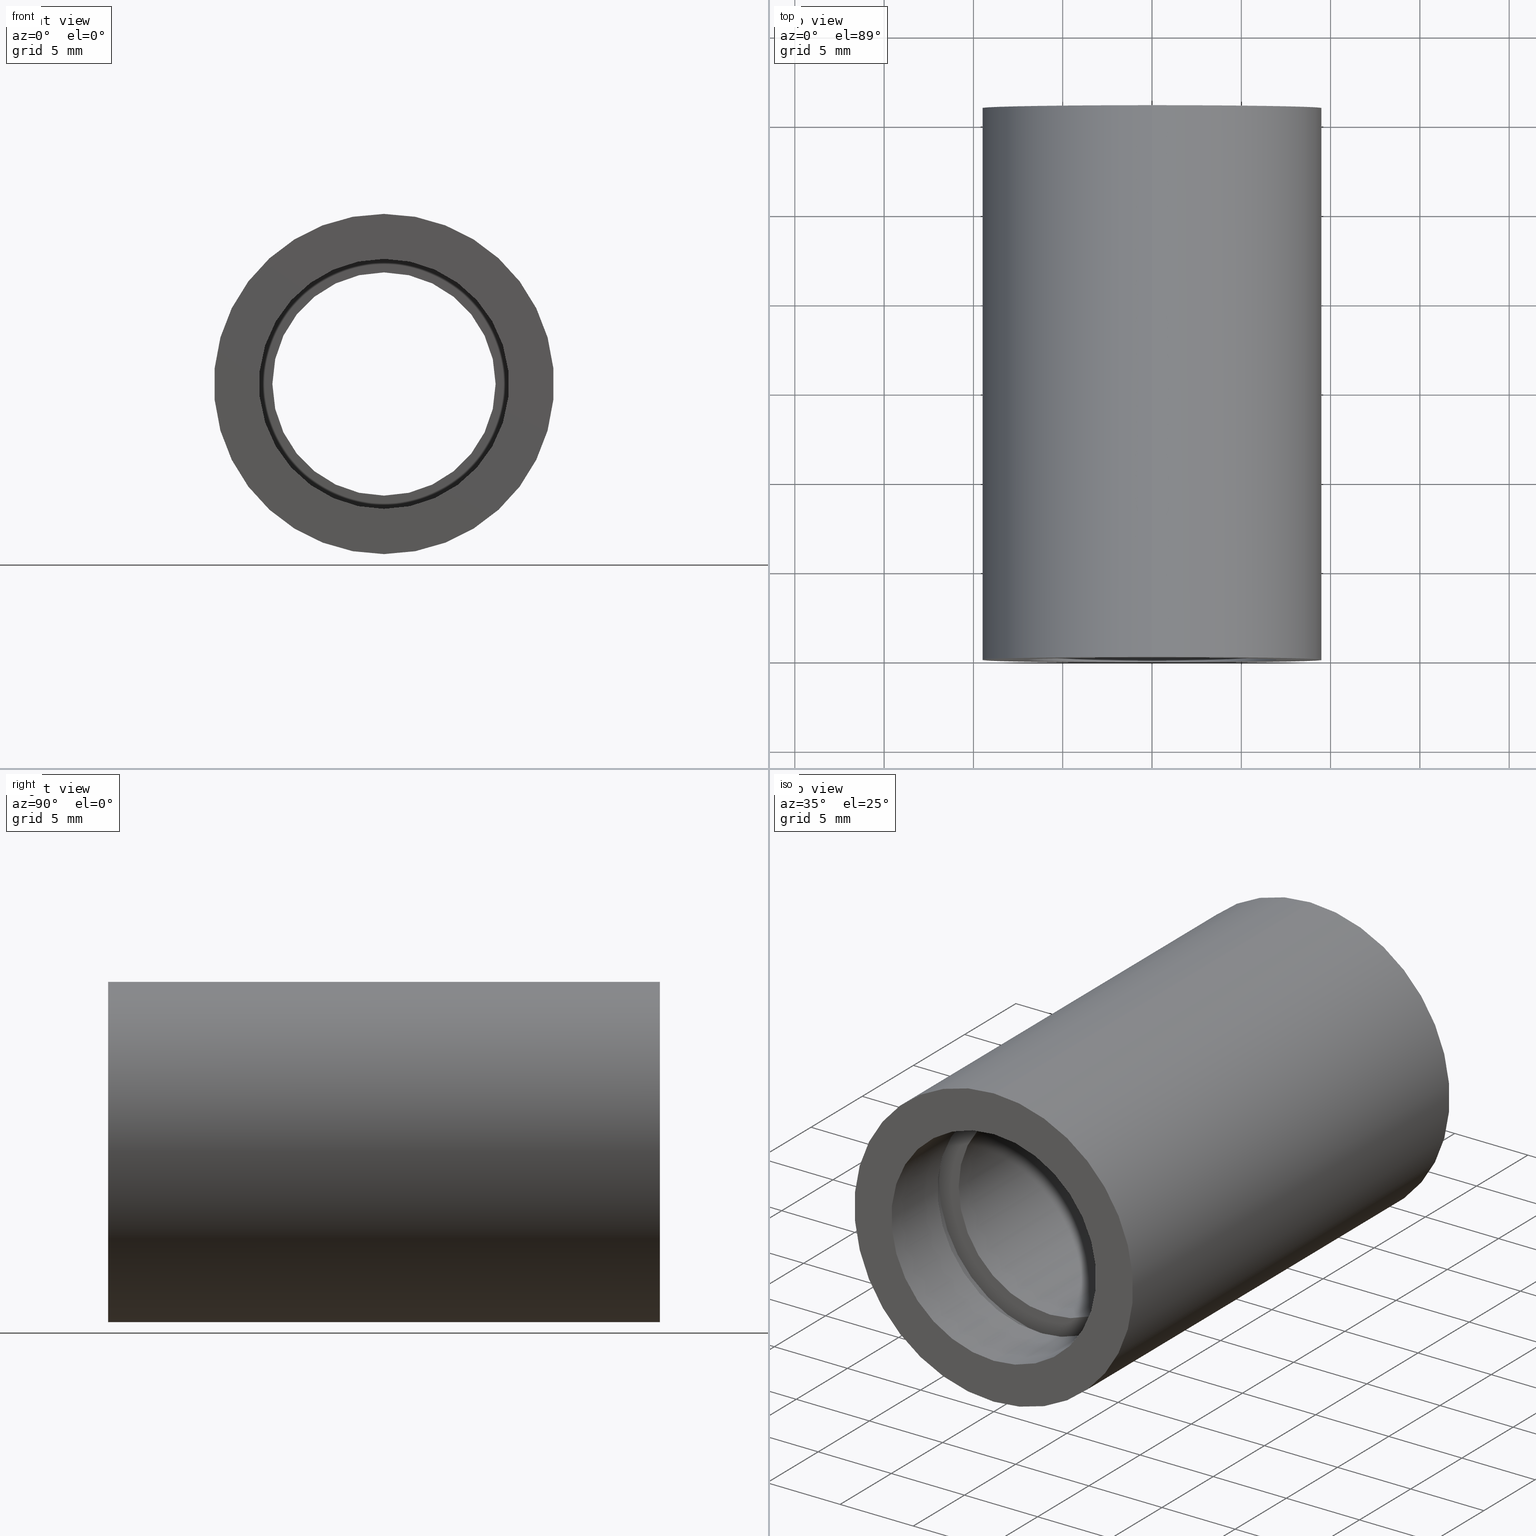
[diagram: canonical four-view strip — front | top / right | iso, engineering-drawing reading convention]
A machine part, canonical four-view strip (front | top / right | iso — engineering-drawing reading convention). The complete STEP part file that produces these views, byte-faithful:
ISO-10303-21;
HEADER;
FILE_DESCRIPTION (( 'STEP AP214' ),
    '1' );
FILE_NAME ('503086.STEP',
    '2019-09-11T02:37:51',
    ( '' ),
    ( '' ),
    'SwSTEP 2.0',
    'SolidWorks 2016',
    '' );
FILE_SCHEMA (( 'AUTOMOTIVE_DESIGN' ));
ENDSEC;

DATA;
#1 = FACE_BOUND ( 'NONE', #214, .T. ) ;
#2 = EDGE_CURVE ( 'NONE', #108, #208, #423, .T. ) ;
#3 = ADVANCED_FACE ( 'NONE', ( #461, #333 ), #84, .F. ) ;
#4 = CARTESIAN_POINT ( 'NONE',  ( 0.0000000000000000000, 161.3761669434274500, 7.600000000000019200 ) ) ;
#5 =( NAMED_UNIT ( * ) SI_UNIT ( $, .STERADIAN. ) SOLID_ANGLE_UNIT ( ) );
#6 = ADVANCED_FACE ( 'NONE', ( #209 ), #314, .T. ) ;
#7 = ORIENTED_EDGE ( 'NONE', *, *, #376, .T. ) ;
#8 = EDGE_LOOP ( 'NONE', ( #41, #549, #243, #56 ) ) ;
#9 = APPLICATION_PROTOCOL_DEFINITION ( 'draft international standard', 'automotive_design', 1998, #242 ) ;
#10 = AXIS2_PLACEMENT_3D ( 'NONE', #12, #530, #492 ) ;
#11 = ORIENTED_EDGE ( 'NONE', *, *, #350, .T. ) ;
#12 = CARTESIAN_POINT ( 'NONE',  ( 0.0000000000000000000, 161.3761669434274500, 0.0000000000000000000 ) ) ;
#13 = LINE ( 'NONE', #497, #489 ) ;
#14 = CARTESIAN_POINT ( 'NONE',  ( 0.0000000000000000000, -2.775557561562891400E-014, 9.525000000000019900 ) ) ;
#15 =( NAMED_UNIT ( * ) SI_UNIT ( $, .STERADIAN. ) SOLID_ANGLE_UNIT ( ) );
#16 = DIRECTION ( 'NONE',  ( 0.0000000000000000000, 0.0000000000000000000, 1.000000000000000000 ) ) ;
#17 = ORIENTED_EDGE ( 'NONE', *, *, #181, .F. ) ;
#18 = AXIS2_PLACEMENT_3D ( 'NONE', #537, #119, #340 ) ;
#19 = CARTESIAN_POINT ( 'NONE',  ( 6.250000000000019500, 5.499999999999983100, 0.0000000000000000000 ) ) ;
#20 = VECTOR ( 'NONE', #146, 1000.000000000000000 ) ;
#21 = DIRECTION ( 'NONE',  ( -0.0000000000000000000, 1.000000000000000000, -0.0000000000000000000 ) ) ;
#22 = STYLED_ITEM ( 'NONE', ( #330 ), #153 ) ;
#23 = CARTESIAN_POINT ( 'NONE',  ( 0.0000000000000000000, 161.3761669434274500, 0.0000000000000000000 ) ) ;
#24 = UNCERTAINTY_MEASURE_WITH_UNIT (LENGTH_MEASURE( 1.000000000000000100E-005 ), #103, 'distance_accuracy_value', 'NONE');
#25 = VERTEX_POINT ( 'NONE', #85 ) ;
#26 =( NAMED_UNIT ( * ) PLANE_ANGLE_UNIT ( ) SI_UNIT ( $, .RADIAN. ) );
#27 = FACE_BOUND ( 'NONE', #353, .T. ) ;
#28 = DIRECTION ( 'NONE',  ( -0.0000000000000000000, 1.000000000000000000, -0.0000000000000000000 ) ) ;
#29 = AXIS2_PLACEMENT_3D ( 'NONE', #582, #344, #244 ) ;
#30 = ORIENTED_EDGE ( 'NONE', *, *, #457, .T. ) ;
#31 = AXIS2_PLACEMENT_3D ( 'NONE', #563, #322, #565 ) ;
#32 = VERTEX_POINT ( 'NONE', #171 ) ;
#33 = FACE_BOUND ( 'NONE', #342, .T. ) ;
#34 = AXIS2_PLACEMENT_3D ( 'NONE', #265, #544, #174 ) ;
#35 = CARTESIAN_POINT ( 'NONE',  ( 0.0000000000000000000, 161.3761669434274500, 0.0000000000000000000 ) ) ;
#36 = DIRECTION ( 'NONE',  ( -0.0000000000000000000, 1.000000000000000000, -0.0000000000000000000 ) ) ;
#37 = SURFACE_STYLE_FILL_AREA ( #569 ) ;
#38 = DIRECTION ( 'NONE',  ( 0.0000000000000000000, 0.0000000000000000000, 1.000000000000000000 ) ) ;
#39 = CARTESIAN_POINT ( 'NONE',  ( 8.817456953860961000E-016, 161.3761669434274500, -7.200000000000015300 ) ) ;
#40 = CARTESIAN_POINT ( 'NONE',  ( 9.307315673519907200E-016, 161.3761669434274500, -7.600000000000019200 ) ) ;
#41 = ORIENTED_EDGE ( 'NONE', *, *, #494, .F. ) ;
#42 = DIRECTION ( 'NONE',  ( 0.0000000000000000000, 0.0000000000000000000, 1.000000000000000000 ) ) ;
#43 = VECTOR ( 'NONE', #470, 1000.000000000000000 ) ;
#44 =( GEOMETRIC_REPRESENTATION_CONTEXT ( 3 ) GLOBAL_UNCERTAINTY_ASSIGNED_CONTEXT ( ( #24 ) ) GLOBAL_UNIT_ASSIGNED_CONTEXT ( ( #103, #237, #572 ) ) REPRESENTATION_CONTEXT ( 'NONE', 'WORKASPACE' ) );
#45 = APPLICATION_CONTEXT ( 'automotive_design' ) ;
#46 =( NAMED_UNIT ( * ) SI_UNIT ( $, .STERADIAN. ) SOLID_ANGLE_UNIT ( ) );
#47 = UNCERTAINTY_MEASURE_WITH_UNIT (LENGTH_MEASURE( 1.000000000000000100E-005 ), #303, 'distance_accuracy_value', 'NONE');
#48 = ORIENTED_EDGE ( 'NONE', *, *, #309, .T. ) ;
#49 = ADVANCED_FACE ( 'NONE', ( #578 ), #194, .F. ) ;
#50 = VERTEX_POINT ( 'NONE', #222 ) ;
#51 = FILL_AREA_STYLE ('',( #622 ) ) ;
#52 = CIRCLE ( 'NONE', #292, 7.000000000000020400 ) ;
#53 = DIRECTION ( 'NONE',  ( 0.0000000000000000000, 0.0000000000000000000, 1.000000000000000000 ) ) ;
#54 = AXIS2_PLACEMENT_3D ( 'NONE', #590, #111, #427 ) ;
#55 = CARTESIAN_POINT ( 'NONE',  ( 0.0000000000000000000, 5.499999999999976900, 6.250000000000019500 ) ) ;
#56 = ORIENTED_EDGE ( 'NONE', *, *, #473, .F. ) ;
#57 = PLANE ( 'NONE',  #487 ) ;
#58 = CARTESIAN_POINT ( 'NONE',  ( 0.0000000000000000000, 161.3761669434274500, 0.0000000000000000000 ) ) ;
#59 = EDGE_LOOP ( 'NONE', ( #459, #496, #623, #368 ) ) ;
#60 = LINE ( 'NONE', #446, #317 ) ;
#61 = CARTESIAN_POINT ( 'NONE',  ( 0.0000000000000000000, 25.39999999999997700, 6.250000000000019500 ) ) ;
#62 = VERTEX_POINT ( 'NONE', #267 ) ;
#63 = EDGE_CURVE ( 'NONE', #293, #122, #88, .T. ) ;
#64 = ORIENTED_EDGE ( 'NONE', *, *, #473, .T. ) ;
#65 = DIRECTION ( 'NONE',  ( -0.0000000000000000000, 1.000000000000000000, -0.0000000000000000000 ) ) ;
#66 = PRESENTATION_LAYER_ASSIGNMENT (  '', '', ( #452 ) ) ;
#67 = CARTESIAN_POINT ( 'NONE',  ( 0.0000000000000000000, 4.499999999999976000, 0.0000000000000000000 ) ) ;
#68 = PRESENTATION_LAYER_ASSIGNMENT (  '', '', ( #498 ) ) ;
#69 = AXIS2_PLACEMENT_3D ( 'NONE', #616, #36, #42 ) ;
#70 = CIRCLE ( 'NONE', #595, 7.000000000000020400 ) ;
#71 = CARTESIAN_POINT ( 'NONE',  ( 0.0000000000000000000, -2.775557561562891400E-014, 0.0000000000000000000 ) ) ;
#72 = ORIENTED_EDGE ( 'NONE', *, *, #289, .F. ) ;
#73 = DIRECTION ( 'NONE',  ( 0.0000000000000000000, -1.000000000000000000, 0.0000000000000000000 ) ) ;
#74 = CIRCLE ( 'NONE', #394, 7.200000000000014400 ) ;
#75 = VERTEX_POINT ( 'NONE', #614 ) ;
#76 = FACE_OUTER_BOUND ( 'NONE', #229, .T. ) ;
#77 = DIRECTION ( 'NONE',  ( 0.0000000000000000000, -0.0000000000000000000, -1.000000000000000000 ) ) ;
#78 = SURFACE_STYLE_FILL_AREA ( #351 ) ;
#79 = DIRECTION ( 'NONE',  ( 0.0000000000000000000, 0.0000000000000000000, 1.000000000000000000 ) ) ;
#80 = AXIS2_PLACEMENT_3D ( 'NONE', #291, #439, #285 ) ;
#81 = ORIENTED_EDGE ( 'NONE', *, *, #223, .T. ) ;
#82 = COLOUR_RGB ( '',1.000000000000000000, 1.000000000000000000, 1.000000000000000000 ) ;
#83 = ORIENTED_EDGE ( 'NONE', *, *, #371, .T. ) ;
#84 = PLANE ( 'NONE',  #479 ) ;
#85 = CARTESIAN_POINT ( 'NONE',  ( 0.0000000000000000000, 4.499999999999976000, 7.000000000000020400 ) ) ;
#86 = CARTESIAN_POINT ( 'NONE',  ( 7.000000000000020400, -1.634585625335647100E-014, 0.0000000000000000000 ) ) ;
#87 =( LENGTH_UNIT ( ) NAMED_UNIT ( * ) SI_UNIT ( .MILLI., .METRE. ) );
#88 = CIRCLE ( 'NONE', #253, 6.250000000000019500 ) ;
#89 = SURFACE_SIDE_STYLE ('',( #37 ) ) ;
#90 = VERTEX_POINT ( 'NONE', #606 ) ;
#91 = CARTESIAN_POINT ( 'NONE',  ( 7.654042494670981300E-016, 5.499999999999976900, -6.250000000000019500 ) ) ;
#92 = FACE_OUTER_BOUND ( 'NONE', #395, .T. ) ;
#93 = EDGE_CURVE ( 'NONE', #108, #166, #557, .T. ) ;
#94 = FILL_AREA_STYLE_COLOUR ( '', #528 ) ;
#95 = DIRECTION ( 'NONE',  ( -0.0000000000000000000, 1.000000000000000000, 0.0000000000000000000 ) ) ;
#96 = ADVANCED_FACE ( 'NONE', ( #349 ), #191, .T. ) ;
#97 = ORIENTED_EDGE ( 'NONE', *, *, #534, .T. ) ;
#98 = EDGE_CURVE ( 'NONE', #275, #172, #70, .T. ) ;
#99 = DIRECTION ( 'NONE',  ( -0.0000000000000000000, 1.000000000000000000, -0.0000000000000000000 ) ) ;
#100 = AXIS2_PLACEMENT_3D ( 'NONE', #71, #21, #300 ) ;
#101 = CIRCLE ( 'NONE', #279, 9.525000000000019900 ) ;
#102 = DIRECTION ( 'NONE',  ( 1.000000000000000000, 0.0000000000000000000, 0.0000000000000000000 ) ) ;
#103 =( LENGTH_UNIT ( ) NAMED_UNIT ( * ) SI_UNIT ( .MILLI., .METRE. ) );
#104 = ORIENTED_EDGE ( 'NONE', *, *, #520, .F. ) ;
#105 = AXIS2_PLACEMENT_3D ( 'NONE', #454, #360, #551 ) ;
#106 = LINE ( 'NONE', #411, #522 ) ;
#107 = COLOUR_RGB ( '',1.000000000000000000, 1.000000000000000000, 1.000000000000000000 ) ;
#108 = VERTEX_POINT ( 'NONE', #318 ) ;
#109 = CARTESIAN_POINT ( 'NONE',  ( 0.0000000000000000000, 30.89999999999998400, 7.200000000000014400 ) ) ;
#110 = FACE_OUTER_BOUND ( 'NONE', #176, .T. ) ;
#111 = DIRECTION ( 'NONE',  ( -0.0000000000000000000, 1.000000000000000000, -0.0000000000000000000 ) ) ;
#112 = DIRECTION ( 'NONE',  ( -0.0000000000000000000, 1.000000000000000000, -0.0000000000000000000 ) ) ;
#113 = SURFACE_SIDE_STYLE ('',( #135 ) ) ;
#114 = CARTESIAN_POINT ( 'NONE',  ( 0.0000000000000000000, 25.39999999999997700, 0.0000000000000000000 ) ) ;
#115 = EDGE_LOOP ( 'NONE', ( #263, #295, #196, #463 ) ) ;
#116 = AXIS2_PLACEMENT_3D ( 'NONE', #114, #430, #120 ) ;
#117 = CARTESIAN_POINT ( 'NONE',  ( 0.0000000000000000000, 30.89999999999998400, 0.0000000000000000000 ) ) ;
#118 = FACE_BOUND ( 'NONE', #336, .T. ) ;
#119 = DIRECTION ( 'NONE',  ( 0.0000000000000000000, -1.000000000000000000, 0.0000000000000000000 ) ) ;
#120 = DIRECTION ( 'NONE',  ( 0.0000000000000000000, 0.0000000000000000000, 1.000000000000000000 ) ) ;
#121 = DIRECTION ( 'NONE',  ( -0.0000000000000000000, 1.000000000000000000, -0.0000000000000000000 ) ) ;
#122 = VERTEX_POINT ( 'NONE', #91 ) ;
#123 = PLANE ( 'NONE',  #18 ) ;
#124 = DIRECTION ( 'NONE',  ( -0.0000000000000000000, 1.000000000000000000, -0.0000000000000000000 ) ) ;
#125 = EDGE_CURVE ( 'NONE', #259, #469, #298, .T. ) ;
#126 = ORIENTED_EDGE ( 'NONE', *, *, #382, .F. ) ;
#127 = CARTESIAN_POINT ( 'NONE',  ( 0.0000000000000000000, 30.89999999999998400, 0.0000000000000000000 ) ) ;
#128 = PRESENTATION_STYLE_ASSIGNMENT (( #337 ) ) ;
#129 = ORIENTED_EDGE ( 'NONE', *, *, #125, .T. ) ;
#130 = DIRECTION ( 'NONE',  ( -0.0000000000000000000, 1.000000000000000000, -0.0000000000000000000 ) ) ;
#131 = DIRECTION ( 'NONE',  ( 0.0000000000000000000, 0.0000000000000000000, 1.000000000000000000 ) ) ;
#132 = SURFACE_STYLE_FILL_AREA ( #155 ) ;
#133 = AXIS2_PLACEMENT_3D ( 'NONE', #433, #202, #16 ) ;
#134 = ORIENTED_EDGE ( 'NONE', *, *, #346, .F. ) ;
#135 = SURFACE_STYLE_FILL_AREA ( #195 ) ;
#136 = VECTOR ( 'NONE', #140, 1000.000000000000000 ) ;
#137 = PRESENTATION_LAYER_ASSIGNMENT (  '', '', ( #22 ) ) ;
#138 =( NAMED_UNIT ( * ) PLANE_ANGLE_UNIT ( ) SI_UNIT ( $, .RADIAN. ) );
#139 = DIRECTION ( 'NONE',  ( 0.0000000000000000000, 0.0000000000000000000, 1.000000000000000000 ) ) ;
#140 = DIRECTION ( 'NONE',  ( -0.0000000000000000000, 1.000000000000000000, -0.0000000000000000000 ) ) ;
#141 =( LENGTH_UNIT ( ) NAMED_UNIT ( * ) SI_UNIT ( .MILLI., .METRE. ) );
#142 = ORIENTED_EDGE ( 'NONE', *, *, #485, .F. ) ;
#143 = AXIS2_PLACEMENT_3D ( 'NONE', #148, #474, #570 ) ;
#144 = FACE_OUTER_BOUND ( 'NONE', #59, .T. ) ;
#145 = DIRECTION ( 'NONE',  ( 0.0000000000000000000, 0.0000000000000000000, 1.000000000000000000 ) ) ;
#146 = DIRECTION ( 'NONE',  ( -0.0000000000000000000, 1.000000000000000000, -0.0000000000000000000 ) ) ;
#147 = EDGE_LOOP ( 'NONE', ( #526, #539, #413, #11 ) ) ;
#148 = CARTESIAN_POINT ( 'NONE',  ( 0.0000000000000000000, 5.499999999999976900, 0.0000000000000000000 ) ) ;
#149 = CYLINDRICAL_SURFACE ( 'NONE', #604, 7.600000000000019200 ) ;
#150 = DIRECTION ( 'NONE',  ( 0.0000000000000000000, 0.0000000000000000000, 1.000000000000000000 ) ) ;
#151 = EDGE_CURVE ( 'NONE', #62, #469, #419, .T. ) ;
#152 =( NAMED_UNIT ( * ) PLANE_ANGLE_UNIT ( ) SI_UNIT ( $, .RADIAN. ) );
#153 = ADVANCED_FACE ( 'NONE', ( #402 ), #561, .F. ) ;
#154 = ORIENTED_EDGE ( 'NONE', *, *, #589, .T. ) ;
#155 = FILL_AREA_STYLE ('',( #587 ) ) ;
#156 = SURFACE_SIDE_STYLE ('',( #132 ) ) ;
#157 = EDGE_LOOP ( 'NONE', ( #359, #64 ) ) ;
#158 = AXIS2_PLACEMENT_3D ( 'NONE', #269, #325, #380 ) ;
#159 = SURFACE_STYLE_USAGE ( .BOTH. , #288 ) ;
#160 = PLANE ( 'NONE',  #591 ) ;
#161 = CIRCLE ( 'NONE', #310, 7.200000000000015300 ) ;
#162 = MECHANICAL_DESIGN_GEOMETRIC_PRESENTATION_REPRESENTATION (  '', ( #22 ), #581 ) ;
#163 = CYLINDRICAL_SURFACE ( 'NONE', #280, 7.600000000000019200 ) ;
#164 = SHAPE_DEFINITION_REPRESENTATION ( #207, #261 ) ;
#165 = DIRECTION ( 'NONE',  ( -0.0000000000000000000, 1.000000000000000000, 0.0000000000000000000 ) ) ;
#166 = VERTEX_POINT ( 'NONE', #405 ) ;
#167 = FACE_BOUND ( 'NONE', #221, .T. ) ;
#168 = DIRECTION ( 'NONE',  ( -0.0000000000000000000, 1.000000000000000000, -0.0000000000000000000 ) ) ;
#169 = STYLED_ITEM ( 'NONE', ( #438 ), #375 ) ;
#170 = ORIENTED_EDGE ( 'NONE', *, *, #93, .T. ) ;
#171 = CARTESIAN_POINT ( 'NONE',  ( 0.0000000000000000000, 5.499999999999976900, 7.600000000000019200 ) ) ;
#172 = VERTEX_POINT ( 'NONE', #507 ) ;
#173 = CIRCLE ( 'NONE', #372, 7.600000000000019200 ) ;
#174 = DIRECTION ( 'NONE',  ( 0.0000000000000000000, 0.0000000000000000000, 1.000000000000000000 ) ) ;
#175 =( NAMED_UNIT ( * ) SI_UNIT ( $, .STERADIAN. ) SOLID_ANGLE_UNIT ( ) );
#176 = EDGE_LOOP ( 'NONE', ( #600, #516 ) ) ;
#177 = DIRECTION ( 'NONE',  ( -0.0000000000000000000, 1.000000000000000000, -0.0000000000000000000 ) ) ;
#178 = CARTESIAN_POINT ( 'NONE',  ( 0.0000000000000000000, -2.775557561562891400E-014, 0.0000000000000000000 ) ) ;
#179 = ORIENTED_EDGE ( 'NONE', *, *, #2, .T. ) ;
#180 = AXIS2_PLACEMENT_3D ( 'NONE', #388, #518, #102 ) ;
#181 = EDGE_CURVE ( 'NONE', #122, #481, #184, .T. ) ;
#182 = SURFACE_SIDE_STYLE ('',( #458 ) ) ;
#183 = ADVANCED_FACE ( 'NONE', ( #76 ), #163, .F. ) ;
#184 = LINE ( 'NONE', #361, #43 ) ;
#185 = APPLICATION_PROTOCOL_DEFINITION ( 'draft international standard', 'automotive_design', 1998, #45 ) ;
#186 = FILL_AREA_STYLE ('',( #558 ) ) ;
#187 = ADVANCED_FACE ( 'NONE', ( #255 ), #374, .F. ) ;
#188 = EDGE_LOOP ( 'NONE', ( #17, #566, #205, #7 ) ) ;
#189 = EDGE_CURVE ( 'NONE', #275, #236, #348, .T. ) ;
#190 = SURFACE_STYLE_USAGE ( .BOTH. , #416 ) ;
#191 = CYLINDRICAL_SURFACE ( 'NONE', #541, 9.525000000000019900 ) ;
#192 = STYLED_ITEM ( 'NONE', ( #378 ), #187 ) ;
#193 = DIRECTION ( 'NONE',  ( 0.0000000000000000000, 0.0000000000000000000, 1.000000000000000000 ) ) ;
#194 = CYLINDRICAL_SURFACE ( 'NONE', #105, 7.600000000000019200 ) ;
#195 = FILL_AREA_STYLE ('',( #421 ) ) ;
#196 = ORIENTED_EDGE ( 'NONE', *, *, #355, .T. ) ;
#197 = ADVANCED_FACE ( 'NONE', ( #251, #1 ), #509, .F. ) ;
#198 = FACE_OUTER_BOUND ( 'NONE', #597, .T. ) ;
#199 = CARTESIAN_POINT ( 'NONE',  ( 0.0000000000000000000, 161.3761669434274500, 7.600000000000019200 ) ) ;
#200 = DIRECTION ( 'NONE',  ( -0.0000000000000000000, 1.000000000000000000, -0.0000000000000000000 ) ) ;
#201 = UNCERTAINTY_MEASURE_WITH_UNIT (LENGTH_MEASURE( 1.000000000000000100E-005 ), #141, 'distance_accuracy_value', 'NONE');
#202 = DIRECTION ( 'NONE',  ( -0.0000000000000000000, 1.000000000000000000, -0.0000000000000000000 ) ) ;
#203 = ORIENTED_EDGE ( 'NONE', *, *, #125, .F. ) ;
#204 = PRESENTATION_LAYER_ASSIGNMENT (  '', '', ( #621 ) ) ;
#205 = ORIENTED_EDGE ( 'NONE', *, *, #398, .T. ) ;
#206 =( NAMED_UNIT ( * ) PLANE_ANGLE_UNIT ( ) SI_UNIT ( $, .RADIAN. ) );
#207 = PRODUCT_DEFINITION_SHAPE ( 'NONE', 'NONE',  #540 ) ;
#208 = VERTEX_POINT ( 'NONE', #613 ) ;
#209 = FACE_OUTER_BOUND ( 'NONE', #531, .T. ) ;
#210 = DIRECTION ( 'NONE',  ( 0.0000000000000000000, 0.0000000000000000000, 1.000000000000000000 ) ) ;
#211 = EDGE_LOOP ( 'NONE', ( #48, #448 ) ) ;
#212 = CARTESIAN_POINT ( 'NONE',  ( 0.0000000000000000000, 26.39999999999997700, 0.0000000000000000000 ) ) ;
#213 = DIRECTION ( 'NONE',  ( -0.0000000000000000000, 1.000000000000000000, -0.0000000000000000000 ) ) ;
#214 = EDGE_LOOP ( 'NONE', ( #277, #343 ) ) ;
#215 = ORIENTED_EDGE ( 'NONE', *, *, #151, .F. ) ;
#216 = CARTESIAN_POINT ( 'NONE',  ( 0.0000000000000000000, 25.39999999999997700, 0.0000000000000000000 ) ) ;
#217 = UNCERTAINTY_MEASURE_WITH_UNIT (LENGTH_MEASURE( 1.000000000000000100E-005 ), #482, 'distance_accuracy_value', 'NONE');
#218 = EDGE_CURVE ( 'NONE', #588, #434, #106, .T. ) ;
#219 =( GEOMETRIC_REPRESENTATION_CONTEXT ( 3 ) GLOBAL_UNCERTAINTY_ASSIGNED_CONTEXT ( ( #47 ) ) GLOBAL_UNIT_ASSIGNED_CONTEXT ( ( #303, #26, #599 ) ) REPRESENTATION_CONTEXT ( 'NONE', 'WORKASPACE' ) );
#220 = CARTESIAN_POINT ( 'NONE',  ( 0.0000000000000000000, 25.39999999999997700, 0.0000000000000000000 ) ) ;
#221 = EDGE_LOOP ( 'NONE', ( #203, #72 ) ) ;
#222 = CARTESIAN_POINT ( 'NONE',  ( 0.0000000000000000000, 26.39999999999997700, 7.200000000000015300 ) ) ;
#223 = EDGE_CURVE ( 'NONE', #588, #321, #268, .T. ) ;
#224 = DIRECTION ( 'NONE',  ( 0.0000000000000000000, 0.0000000000000000000, 1.000000000000000000 ) ) ;
#225 = ORIENTED_EDGE ( 'NONE', *, *, #534, .F. ) ;
#226 = DIRECTION ( 'NONE',  ( 0.0000000000000000000, 0.0000000000000000000, 1.000000000000000000 ) ) ;
#227 = DIRECTION ( 'NONE',  ( -0.0000000000000000000, 1.000000000000000000, -0.0000000000000000000 ) ) ;
#228 = ORIENTED_EDGE ( 'NONE', *, *, #346, .T. ) ;
#229 = EDGE_LOOP ( 'NONE', ( #142, #410, #605, #299 ) ) ;
#230 =( NAMED_UNIT ( * ) PLANE_ANGLE_UNIT ( ) SI_UNIT ( $, .RADIAN. ) );
#231 = AXIS2_PLACEMENT_3D ( 'NONE', #335, #278, #150 ) ;
#232 = DIRECTION ( 'NONE',  ( -0.0000000000000000000, 1.000000000000000000, -0.0000000000000000000 ) ) ;
#233 = CYLINDRICAL_SURFACE ( 'NONE', #573, 7.600000000000019200 ) ;
#234 = CARTESIAN_POINT ( 'NONE',  ( 1.166476076187856400E-015, -2.775557561562891400E-014, -9.525000000000019900 ) ) ;
#235 =( NAMED_UNIT ( * ) PLANE_ANGLE_UNIT ( ) SI_UNIT ( $, .RADIAN. ) );
#236 = VERTEX_POINT ( 'NONE', #363 ) ;
#237 =( NAMED_UNIT ( * ) PLANE_ANGLE_UNIT ( ) SI_UNIT ( $, .RADIAN. ) );
#238 = FACE_OUTER_BOUND ( 'NONE', #364, .T. ) ;
#239 = CARTESIAN_POINT ( 'NONE',  ( 6.250000000000019500, 25.39999999999998100, 0.0000000000000000000 ) ) ;
#240 = DIRECTION ( 'NONE',  ( -0.0000000000000000000, 1.000000000000000000, -0.0000000000000000000 ) ) ;
#241 = ADVANCED_FACE ( 'NONE', ( #92 ), #264, .F. ) ;
#242 = APPLICATION_CONTEXT ( 'automotive_design' ) ;
#243 = ORIENTED_EDGE ( 'NONE', *, *, #218, .T. ) ;
#244 = DIRECTION ( 'NONE',  ( 0.0000000000000000000, 0.0000000000000000000, 1.000000000000000000 ) ) ;
#245 = VECTOR ( 'NONE', #121, 1000.000000000000000 ) ;
#246 =( NAMED_UNIT ( * ) SI_UNIT ( $, .STERADIAN. ) SOLID_ANGLE_UNIT ( ) );
#247 = EDGE_CURVE ( 'NONE', #122, #293, #409, .T. ) ;
#248 = AXIS2_PLACEMENT_3D ( 'NONE', #212, #500, #297 ) ;
#249 = CARTESIAN_POINT ( 'NONE',  ( 0.0000000000000000000, 26.39999999999997700, 7.600000000000019200 ) ) ;
#250 = ORIENTED_EDGE ( 'NONE', *, *, #247, .T. ) ;
#251 = FACE_OUTER_BOUND ( 'NONE', #451, .T. ) ;
#252 = PRODUCT_DEFINITION_CONTEXT ( 'detailed design', #45, 'design' ) ;
#253 = AXIS2_PLACEMENT_3D ( 'NONE', #406, #556, #270 ) ;
#254 = CARTESIAN_POINT ( 'NONE',  ( 8.817456953860959100E-016, 30.89999999999998400, -7.200000000000014400 ) ) ;
#255 = FACE_OUTER_BOUND ( 'NONE', #543, .T. ) ;
#256 = SURFACE_STYLE_USAGE ( .BOTH. , #542 ) ;
#257 = FILL_AREA_STYLE_COLOUR ( '', #618 ) ;
#258 = EDGE_CURVE ( 'NONE', #568, #75, #286, .T. ) ;
#259 = VERTEX_POINT ( 'NONE', #109 ) ;
#260 = CIRCLE ( 'NONE', #475, 7.600000000000019200 ) ;
#261 = ADVANCED_BREP_SHAPE_REPRESENTATION ( '503086', ( #326, #180 ), #385 ) ;
#262 = AXIS2_PLACEMENT_3D ( 'NONE', #575, #240, #327 ) ;
#263 = ORIENTED_EDGE ( 'NONE', *, *, #247, .F. ) ;
#264 = CYLINDRICAL_SURFACE ( 'NONE', #262, 7.000000000000020400 ) ;
#265 = CARTESIAN_POINT ( 'NONE',  ( 0.0000000000000000000, 161.3761669434274500, 0.0000000000000000000 ) ) ;
#266 = LINE ( 'NONE', #199, #391 ) ;
#267 = CARTESIAN_POINT ( 'NONE',  ( 8.817456953860961000E-016, 26.39999999999997700, -7.200000000000015300 ) ) ;
#268 = CIRCLE ( 'NONE', #31, 9.525000000000019900 ) ;
#269 = CARTESIAN_POINT ( 'NONE',  ( 0.0000000000000000000, 26.39999999999997700, 0.0000000000000000000 ) ) ;
#270 = DIRECTION ( 'NONE',  ( 0.0000000000000000000, 0.0000000000000000000, 1.000000000000000000 ) ) ;
#271 = FILL_AREA_STYLE ('',( #94 ) ) ;
#272 = ORIENTED_EDGE ( 'NONE', *, *, #376, .F. ) ;
#273 = CIRCLE ( 'NONE', #116, 6.250000000000019500 ) ;
#274 = CARTESIAN_POINT ( 'NONE',  ( 8.572527594031496900E-016, -2.775557561562891400E-014, -7.000000000000020400 ) ) ;
#275 = VERTEX_POINT ( 'NONE', #274 ) ;
#276 = EDGE_CURVE ( 'NONE', #90, #32, #559, .T. ) ;
#277 = ORIENTED_EDGE ( 'NONE', *, *, #502, .T. ) ;
#278 = DIRECTION ( 'NONE',  ( -0.0000000000000000000, 1.000000000000000000, -0.0000000000000000000 ) ) ;
#279 = AXIS2_PLACEMENT_3D ( 'NONE', #127, #124, #79 ) ;
#280 = AXIS2_PLACEMENT_3D ( 'NONE', #555, #319, #224 ) ;
#281 = CARTESIAN_POINT ( 'NONE',  ( 0.0000000000000000000, 4.499999999999976000, 7.600000000000019200 ) ) ;
#282 = VECTOR ( 'NONE', #177, 1000.000000000000000 ) ;
#283 = COLOUR_RGB ( '',1.000000000000000000, 1.000000000000000000, 1.000000000000000000 ) ;
#284 = ORIENTED_EDGE ( 'NONE', *, *, #189, .F. ) ;
#285 = DIRECTION ( 'NONE',  ( 0.0000000000000000000, 0.0000000000000000000, 1.000000000000000000 ) ) ;
#286 = CIRCLE ( 'NONE', #466, 7.600000000000019200 ) ;
#287 = ORIENTED_EDGE ( 'NONE', *, *, #309, .F. ) ;
#288 = SURFACE_SIDE_STYLE ('',( #302 ) ) ;
#289 = EDGE_CURVE ( 'NONE', #469, #259, #74, .T. ) ;
#290 = DIRECTION ( 'NONE',  ( 0.0000000000000000000, -1.000000000000000000, 0.0000000000000000000 ) ) ;
#291 = CARTESIAN_POINT ( 'NONE',  ( 0.0000000000000000000, 5.499999999999976900, 0.0000000000000000000 ) ) ;
#292 = AXIS2_PLACEMENT_3D ( 'NONE', #67, #200, #294 ) ;
#293 = VERTEX_POINT ( 'NONE', #55 ) ;
#294 = DIRECTION ( 'NONE',  ( 0.0000000000000000000, 0.0000000000000000000, 1.000000000000000000 ) ) ;
#295 = ORIENTED_EDGE ( 'NONE', *, *, #181, .T. ) ;
#296 = CARTESIAN_POINT ( 'NONE',  ( 7.200000000000014400, 30.89999999999998400, 0.0000000000000000000 ) ) ;
#297 = DIRECTION ( 'NONE',  ( 0.0000000000000000000, 0.0000000000000000000, 1.000000000000000000 ) ) ;
#298 = CIRCLE ( 'NONE', #69, 7.200000000000014400 ) ;
#299 = ORIENTED_EDGE ( 'NONE', *, *, #320, .F. ) ;
#300 = DIRECTION ( 'NONE',  ( 0.0000000000000000000, 0.0000000000000000000, 1.000000000000000000 ) ) ;
#301 = VECTOR ( 'NONE', #366, 1000.000000000000000 ) ;
#302 = SURFACE_STYLE_FILL_AREA ( #386 ) ;
#303 =( LENGTH_UNIT ( ) NAMED_UNIT ( * ) SI_UNIT ( .MILLI., .METRE. ) );
#304 = FACE_OUTER_BOUND ( 'NONE', #367, .T. ) ;
#305 = DIRECTION ( 'NONE',  ( -0.0000000000000000000, 1.000000000000000000, -0.0000000000000000000 ) ) ;
#306 = ORIENTED_EDGE ( 'NONE', *, *, #189, .T. ) ;
#307 = VERTEX_POINT ( 'NONE', #329 ) ;
#308 = PRODUCT ( '503086', '503086', '', ( #467 ) ) ;
#309 = EDGE_CURVE ( 'NONE', #172, #275, #608, .T. ) ;
#310 = AXIS2_PLACEMENT_3D ( 'NONE', #338, #112, #428 ) ;
#311 = DIRECTION ( 'NONE',  ( 0.0000000000000000000, 0.0000000000000000000, 1.000000000000000000 ) ) ;
#312 = ORIENTED_EDGE ( 'NONE', *, *, #412, .T. ) ;
#313 = PRESENTATION_LAYER_ASSIGNMENT (  '', '', ( #192 ) ) ;
#314 = CYLINDRICAL_SURFACE ( 'NONE', #34, 9.525000000000019900 ) ;
#315 = DIRECTION ( 'NONE',  ( -0.0000000000000000000, 1.000000000000000000, -0.0000000000000000000 ) ) ;
#316 = EDGE_LOOP ( 'NONE', ( #425, #560 ) ) ;
#317 = VECTOR ( 'NONE', #305, 1000.000000000000000 ) ;
#318 = CARTESIAN_POINT ( 'NONE',  ( 9.307315673519907200E-016, 25.39999999999997700, -7.600000000000019200 ) ) ;
#319 = DIRECTION ( 'NONE',  ( -0.0000000000000000000, 1.000000000000000000, -0.0000000000000000000 ) ) ;
#320 = EDGE_CURVE ( 'NONE', #568, #32, #362, .T. ) ;
#321 = VERTEX_POINT ( 'NONE', #234 ) ;
#322 = DIRECTION ( 'NONE',  ( -0.0000000000000000000, 1.000000000000000000, -0.0000000000000000000 ) ) ;
#323 = ORIENTED_EDGE ( 'NONE', *, *, #494, .T. ) ;
#324 = PRESENTATION_LAYER_ASSIGNMENT (  '', '', ( #169 ) ) ;
#325 = DIRECTION ( 'NONE',  ( -0.0000000000000000000, 1.000000000000000000, -0.0000000000000000000 ) ) ;
#326 = MANIFOLD_SOLID_BREP ( '��ת1', #415 ) ;
#327 = DIRECTION ( 'NONE',  ( 0.0000000000000000000, 0.0000000000000000000, 1.000000000000000000 ) ) ;
#328 = ADVANCED_FACE ( 'NONE', ( #238 ), #400, .F. ) ;
#329 = CARTESIAN_POINT ( 'NONE',  ( 1.166476076187856400E-015, 30.89999999999998400, -9.525000000000019900 ) ) ;
#330 = PRESENTATION_STYLE_ASSIGNMENT (( #460 ) ) ;
#331 = ORIENTED_EDGE ( 'NONE', *, *, #545, .F. ) ;
#332 = CARTESIAN_POINT ( 'NONE',  ( 0.0000000000000000000, 4.499999999999976000, 0.0000000000000000000 ) ) ;
#333 = FACE_BOUND ( 'NONE', #211, .T. ) ;
#334 = DIRECTION ( 'NONE',  ( -0.0000000000000000000, 1.000000000000000000, -0.0000000000000000000 ) ) ;
#335 = CARTESIAN_POINT ( 'NONE',  ( 0.0000000000000000000, -2.775557561562891400E-014, 0.0000000000000000000 ) ) ;
#336 = EDGE_LOOP ( 'NONE', ( #134, #225 ) ) ;
#337 = SURFACE_STYLE_USAGE ( .BOTH. , #113 ) ;
#338 = CARTESIAN_POINT ( 'NONE',  ( 0.0000000000000000000, 26.39999999999997700, 0.0000000000000000000 ) ) ;
#339 = MECHANICAL_DESIGN_GEOMETRIC_PRESENTATION_REPRESENTATION (  '', ( #498 ), #527 ) ;
#340 = DIRECTION ( 'NONE',  ( 0.0000000000000000000, -0.0000000000000000000, -1.000000000000000000 ) ) ;
#341 = DIRECTION ( 'NONE',  ( -0.0000000000000000000, 1.000000000000000000, -0.0000000000000000000 ) ) ;
#342 = EDGE_LOOP ( 'NONE', ( #272, #510 ) ) ;
#343 = ORIENTED_EDGE ( 'NONE', *, *, #382, .T. ) ;
#344 = DIRECTION ( 'NONE',  ( -0.0000000000000000000, 1.000000000000000000, -0.0000000000000000000 ) ) ;
#345 = FACE_OUTER_BOUND ( 'NONE', #476, .T. ) ;
#346 = EDGE_CURVE ( 'NONE', #25, #236, #52, .T. ) ;
#347 = STYLED_ITEM ( 'NONE', ( #562 ), #471 ) ;
#348 = LINE ( 'NONE', #465, #136 ) ;
#349 = FACE_OUTER_BOUND ( 'NONE', #8, .T. ) ;
#350 = EDGE_CURVE ( 'NONE', #32, #90, #552, .T. ) ;
#351 = FILL_AREA_STYLE ('',( #257 ) ) ;
#352 = DIRECTION ( 'NONE',  ( -0.0000000000000000000, 1.000000000000000000, -0.0000000000000000000 ) ) ;
#353 = EDGE_LOOP ( 'NONE', ( #546, #250 ) ) ;
#354 = CARTESIAN_POINT ( 'NONE',  ( 0.0000000000000000000, 161.3761669434274500, 0.0000000000000000000 ) ) ;
#355 = EDGE_CURVE ( 'NONE', #481, #554, #273, .T. ) ;
#356 = AXIS2_PLACEMENT_3D ( 'NONE', #117, #432, #486 ) ;
#357 = AXIS2_PLACEMENT_3D ( 'NONE', #407, #227, #226 ) ;
#358 = FACE_OUTER_BOUND ( 'NONE', #157, .T. ) ;
#359 = ORIENTED_EDGE ( 'NONE', *, *, #603, .T. ) ;
#360 = DIRECTION ( 'NONE',  ( -0.0000000000000000000, 1.000000000000000000, -0.0000000000000000000 ) ) ;
#361 = CARTESIAN_POINT ( 'NONE',  ( 7.654042494670981300E-016, 161.3761669434274500, -6.250000000000019500 ) ) ;
#362 = LINE ( 'NONE', #4, #20 ) ;
#363 = CARTESIAN_POINT ( 'NONE',  ( 8.572527594031496900E-016, 4.499999999999976000, -7.000000000000020400 ) ) ;
#364 = EDGE_LOOP ( 'NONE', ( #126, #431, #503, #499 ) ) ;
#365 = AXIS2_PLACEMENT_3D ( 'NONE', #624, #99, #53 ) ;
#366 = DIRECTION ( 'NONE',  ( -0.0000000000000000000, 1.000000000000000000, -0.0000000000000000000 ) ) ;
#367 = EDGE_LOOP ( 'NONE', ( #390, #306, #97, #596 ) ) ;
#368 = ORIENTED_EDGE ( 'NONE', *, *, #545, .T. ) ;
#369 = UNCERTAINTY_MEASURE_WITH_UNIT (LENGTH_MEASURE( 1.000000000000000100E-005 ), #525, 'distance_accuracy_value', 'NONE');
#370 = LINE ( 'NONE', #533, #245 ) ;
#371 = EDGE_CURVE ( 'NONE', #172, #25, #584, .T. ) ;
#372 = AXIS2_PLACEMENT_3D ( 'NONE', #216, #396, #393 ) ;
#373 = CIRCLE ( 'NONE', #356, 9.525000000000019900 ) ;
#374 = CYLINDRICAL_SURFACE ( 'NONE', #357, 7.200000000000015300 ) ;
#375 = ADVANCED_FACE ( 'NONE', ( #304 ), #455, .F. ) ;
#376 = EDGE_CURVE ( 'NONE', #554, #481, #571, .T. ) ;
#377 = DIRECTION ( 'NONE',  ( 0.0000000000000000000, 0.0000000000000000000, 1.000000000000000000 ) ) ;
#378 = PRESENTATION_STYLE_ASSIGNMENT (( #609 ) ) ;
#379 = CARTESIAN_POINT ( 'NONE',  ( 0.0000000000000000000, 161.3761669434274500, 0.0000000000000000000 ) ) ;
#380 = DIRECTION ( 'NONE',  ( 0.0000000000000000000, 0.0000000000000000000, 1.000000000000000000 ) ) ;
#381 = ORIENTED_EDGE ( 'NONE', *, *, #412, .F. ) ;
#382 = EDGE_CURVE ( 'NONE', #62, #50, #161, .T. ) ;
#383 = CYLINDRICAL_SURFACE ( 'NONE', #399, 6.250000000000019500 ) ;
#384 =( NAMED_UNIT ( * ) PLANE_ANGLE_UNIT ( ) SI_UNIT ( $, .RADIAN. ) );
#385 =( GEOMETRIC_REPRESENTATION_CONTEXT ( 3 ) GLOBAL_UNCERTAINTY_ASSIGNED_CONTEXT ( ( #369 ) ) GLOBAL_UNIT_ASSIGNED_CONTEXT ( ( #525, #152, #5 ) ) REPRESENTATION_CONTEXT ( 'NONE', 'WORKASPACE' ) );
#386 = FILL_AREA_STYLE ('',( #577 ) ) ;
#387 = MECHANICAL_DESIGN_GEOMETRIC_PRESENTATION_REPRESENTATION (  '', ( #621 ), #44 ) ;
#388 = CARTESIAN_POINT ( 'NONE',  ( 0.0000000000000000000, 0.0000000000000000000, 0.0000000000000000000 ) ) ;
#389 = DIRECTION ( 'NONE',  ( 0.0000000000000000000, 0.0000000000000000000, 1.000000000000000000 ) ) ;
#390 = ORIENTED_EDGE ( 'NONE', *, *, #98, .F. ) ;
#391 = VECTOR ( 'NONE', #65, 1000.000000000000000 ) ;
#392 = CARTESIAN_POINT ( 'NONE',  ( 7.654042494670981300E-016, 25.39999999999997700, -6.250000000000019500 ) ) ;
#393 = DIRECTION ( 'NONE',  ( 0.0000000000000000000, 0.0000000000000000000, 1.000000000000000000 ) ) ;
#394 = AXIS2_PLACEMENT_3D ( 'NONE', #418, #422, #193 ) ;
#395 = EDGE_LOOP ( 'NONE', ( #284, #287, #83, #228 ) ) ;
#396 = DIRECTION ( 'NONE',  ( -0.0000000000000000000, 1.000000000000000000, -0.0000000000000000000 ) ) ;
#397 = ORIENTED_EDGE ( 'NONE', *, *, #223, .F. ) ;
#398 = EDGE_CURVE ( 'NONE', #293, #554, #370, .T. ) ;
#399 = AXIS2_PLACEMENT_3D ( 'NONE', #23, #352, #495 ) ;
#400 = CYLINDRICAL_SURFACE ( 'NONE', #10, 7.200000000000015300 ) ;
#401 = DIRECTION ( 'NONE',  ( -0.0000000000000000000, 1.000000000000000000, -0.0000000000000000000 ) ) ;
#402 = FACE_OUTER_BOUND ( 'NONE', #115, .T. ) ;
#403 = AXIS2_PLACEMENT_3D ( 'NONE', #35, #401, #145 ) ;
#404 = VERTEX_POINT ( 'NONE', #249 ) ;
#405 = CARTESIAN_POINT ( 'NONE',  ( 9.307315673519907200E-016, 26.39999999999997700, -7.600000000000019200 ) ) ;
#406 = CARTESIAN_POINT ( 'NONE',  ( 0.0000000000000000000, 5.499999999999976900, 0.0000000000000000000 ) ) ;
#407 = CARTESIAN_POINT ( 'NONE',  ( 0.0000000000000000000, 161.3761669434274500, 0.0000000000000000000 ) ) ;
#408 = ADVANCED_FACE ( 'NONE', ( #167, #358 ), #160, .F. ) ;
#409 = CIRCLE ( 'NONE', #365, 6.250000000000019500 ) ;
#410 = ORIENTED_EDGE ( 'NONE', *, *, #450, .T. ) ;
#411 = CARTESIAN_POINT ( 'NONE',  ( 0.0000000000000000000, 161.3761669434274500, 9.525000000000019900 ) ) ;
#412 = EDGE_CURVE ( 'NONE', #166, #404, #464, .T. ) ;
#413 = ORIENTED_EDGE ( 'NONE', *, *, #320, .T. ) ;
#414 = MECHANICAL_DESIGN_GEOMETRIC_PRESENTATION_REPRESENTATION (  '', ( #550 ), #564 ) ;
#415 = CLOSED_SHELL ( 'NONE', ( #375, #183, #153, #478, #328, #6, #3, #96, #408, #187, #197, #517, #574, #471, #426, #49, #512, #241 ) ) ;
#416 = SURFACE_SIDE_STYLE ('',( #444 ) ) ;
#417 = CIRCLE ( 'NONE', #100, 9.525000000000019900 ) ;
#418 = CARTESIAN_POINT ( 'NONE',  ( 0.0000000000000000000, 30.89999999999998400, 0.0000000000000000000 ) ) ;
#419 = LINE ( 'NONE', #39, #282 ) ;
#420 = ORIENTED_EDGE ( 'NONE', *, *, #218, .F. ) ;
#421 = FILL_AREA_STYLE_COLOUR ( '', #82 ) ;
#422 = DIRECTION ( 'NONE',  ( -0.0000000000000000000, 1.000000000000000000, -0.0000000000000000000 ) ) ;
#423 = CIRCLE ( 'NONE', #553, 7.600000000000019200 ) ;
#424 = COLOUR_RGB ( '',1.000000000000000000, 1.000000000000000000, 1.000000000000000000 ) ;
#425 = ORIENTED_EDGE ( 'NONE', *, *, #258, .T. ) ;
#426 = ADVANCED_FACE ( 'NONE', ( #110, #27 ), #538, .F. ) ;
#427 = DIRECTION ( 'NONE',  ( 0.0000000000000000000, 0.0000000000000000000, 1.000000000000000000 ) ) ;
#428 = DIRECTION ( 'NONE',  ( 0.0000000000000000000, 0.0000000000000000000, 1.000000000000000000 ) ) ;
#429 = CARTESIAN_POINT ( 'NONE',  ( 0.0000000000000000000, 161.3761669434274500, 7.200000000000015300 ) ) ;
#430 = DIRECTION ( 'NONE',  ( -0.0000000000000000000, 1.000000000000000000, -0.0000000000000000000 ) ) ;
#431 = ORIENTED_EDGE ( 'NONE', *, *, #151, .T. ) ;
#432 = DIRECTION ( 'NONE',  ( -0.0000000000000000000, 1.000000000000000000, -0.0000000000000000000 ) ) ;
#433 = CARTESIAN_POINT ( 'NONE',  ( 0.0000000000000000000, 25.39999999999997700, 0.0000000000000000000 ) ) ;
#434 = VERTEX_POINT ( 'NONE', #592 ) ;
#435 = UNCERTAINTY_MEASURE_WITH_UNIT (LENGTH_MEASURE( 1.000000000000000100E-005 ), #519, 'distance_accuracy_value', 'NONE');
#436 = SURFACE_STYLE_USAGE ( .BOTH. , #156 ) ;
#437 = EDGE_CURVE ( 'NONE', #321, #588, #417, .T. ) ;
#438 = PRESENTATION_STYLE_ASSIGNMENT (( #436 ) ) ;
#439 = DIRECTION ( 'NONE',  ( -0.0000000000000000000, 1.000000000000000000, -0.0000000000000000000 ) ) ;
#440 = DIRECTION ( 'NONE',  ( 0.0000000000000000000, 0.0000000000000000000, 1.000000000000000000 ) ) ;
#441 = COLOUR_RGB ( '',1.000000000000000000, 1.000000000000000000, 1.000000000000000000 ) ;
#442 = ORIENTED_EDGE ( 'NONE', *, *, #437, .F. ) ;
#443 = MECHANICAL_DESIGN_GEOMETRIC_PRESENTATION_REPRESENTATION (  '', ( #192 ), #506 ) ;
#444 = SURFACE_STYLE_FILL_AREA ( #51 ) ;
#445 = ORIENTED_EDGE ( 'NONE', *, *, #2, .F. ) ;
#446 = CARTESIAN_POINT ( 'NONE',  ( 9.307315673519907200E-016, 161.3761669434274500, -7.600000000000019200 ) ) ;
#447 = FACE_OUTER_BOUND ( 'NONE', #188, .T. ) ;
#448 = ORIENTED_EDGE ( 'NONE', *, *, #98, .T. ) ;
#449 = CARTESIAN_POINT ( 'NONE',  ( 0.0000000000000000000, 4.499999999999976000, 0.0000000000000000000 ) ) ;
#450 = EDGE_CURVE ( 'NONE', #75, #90, #60, .T. ) ;
#451 = EDGE_LOOP ( 'NONE', ( #331, #381 ) ) ;
#452 = STYLED_ITEM ( 'NONE', ( #128 ), #261 ) ;
#453 = AXIS2_PLACEMENT_3D ( 'NONE', #511, #95, #139 ) ;
#454 = CARTESIAN_POINT ( 'NONE',  ( 0.0000000000000000000, 161.3761669434274500, 0.0000000000000000000 ) ) ;
#455 = CYLINDRICAL_SURFACE ( 'NONE', #548, 7.000000000000020400 ) ;
#456 = DIRECTION ( 'NONE',  ( -0.0000000000000000000, 1.000000000000000000, 0.0000000000000000000 ) ) ;
#457 = EDGE_CURVE ( 'NONE', #208, #108, #173, .T. ) ;
#458 = SURFACE_STYLE_FILL_AREA ( #186 ) ;
#459 = ORIENTED_EDGE ( 'NONE', *, *, #93, .F. ) ;
#460 = SURFACE_STYLE_USAGE ( .BOTH. , #182 ) ;
#461 = FACE_OUTER_BOUND ( 'NONE', #615, .T. ) ;
#462 = PRESENTATION_STYLE_ASSIGNMENT (( #190 ) ) ;
#463 = ORIENTED_EDGE ( 'NONE', *, *, #398, .F. ) ;
#464 = CIRCLE ( 'NONE', #248, 7.600000000000019200 ) ;
#465 = CARTESIAN_POINT ( 'NONE',  ( 8.572527594031496900E-016, 161.3761669434274500, -7.000000000000020400 ) ) ;
#466 = AXIS2_PLACEMENT_3D ( 'NONE', #332, #515, #377 ) ;
#467 = PRODUCT_CONTEXT ( 'NONE', #242, 'mechanical' ) ;
#468 = DIRECTION ( 'NONE',  ( 0.0000000000000000000, 0.0000000000000000000, 1.000000000000000000 ) ) ;
#469 = VERTEX_POINT ( 'NONE', #254 ) ;
#470 = DIRECTION ( 'NONE',  ( -0.0000000000000000000, 1.000000000000000000, -0.0000000000000000000 ) ) ;
#471 = ADVANCED_FACE ( 'NONE', ( #447 ), #383, .F. ) ;
#472 = FACE_OUTER_BOUND ( 'NONE', #316, .T. ) ;
#473 = EDGE_CURVE ( 'NONE', #307, #434, #101, .T. ) ;
#474 = DIRECTION ( 'NONE',  ( -0.0000000000000000000, 1.000000000000000000, -0.0000000000000000000 ) ) ;
#475 = AXIS2_PLACEMENT_3D ( 'NONE', #449, #168, #598 ) ;
#476 = EDGE_LOOP ( 'NONE', ( #30, #179 ) ) ;
#477 = PRESENTATION_STYLE_ASSIGNMENT (( #524 ) ) ;
#478 = ADVANCED_FACE ( 'NONE', ( #198 ), #233, .F. ) ;
#479 = AXIS2_PLACEMENT_3D ( 'NONE', #86, #456, #131 ) ;
#480 =( LENGTH_UNIT ( ) NAMED_UNIT ( * ) SI_UNIT ( .MILLI., .METRE. ) );
#481 = VERTEX_POINT ( 'NONE', #392 ) ;
#482 =( LENGTH_UNIT ( ) NAMED_UNIT ( * ) SI_UNIT ( .MILLI., .METRE. ) );
#483 = DIRECTION ( 'NONE',  ( -0.0000000000000000000, 1.000000000000000000, -0.0000000000000000000 ) ) ;
#484 = UNCERTAINTY_MEASURE_WITH_UNIT (LENGTH_MEASURE( 1.000000000000000100E-005 ), #480, 'distance_accuracy_value', 'NONE');
#485 = EDGE_CURVE ( 'NONE', #75, #568, #260, .T. ) ;
#486 = DIRECTION ( 'NONE',  ( 0.0000000000000000000, 0.0000000000000000000, 1.000000000000000000 ) ) ;
#487 = AXIS2_PLACEMENT_3D ( 'NONE', #239, #290, #585 ) ;
#488 =( LENGTH_UNIT ( ) NAMED_UNIT ( * ) SI_UNIT ( .MILLI., .METRE. ) );
#489 = VECTOR ( 'NONE', #130, 1000.000000000000000 ) ;
#490 = MECHANICAL_DESIGN_GEOMETRIC_PRESENTATION_REPRESENTATION (  '', ( #169 ), #514 ) ;
#491 = CARTESIAN_POINT ( 'NONE',  ( 0.0000000000000000000, 161.3761669434274500, 7.000000000000020400 ) ) ;
#492 = DIRECTION ( 'NONE',  ( 0.0000000000000000000, 0.0000000000000000000, 1.000000000000000000 ) ) ;
#493 = SURFACE_STYLE_FILL_AREA ( #271 ) ;
#494 = EDGE_CURVE ( 'NONE', #321, #307, #13, .T. ) ;
#495 = DIRECTION ( 'NONE',  ( 0.0000000000000000000, 0.0000000000000000000, 1.000000000000000000 ) ) ;
#496 = ORIENTED_EDGE ( 'NONE', *, *, #457, .F. ) ;
#497 = CARTESIAN_POINT ( 'NONE',  ( 1.166476076187856400E-015, 161.3761669434274500, -9.525000000000019900 ) ) ;
#498 = STYLED_ITEM ( 'NONE', ( #462 ), #326 ) ;
#499 = ORIENTED_EDGE ( 'NONE', *, *, #589, .F. ) ;
#500 = DIRECTION ( 'NONE',  ( -0.0000000000000000000, 1.000000000000000000, -0.0000000000000000000 ) ) ;
#501 = VECTOR ( 'NONE', #341, 1000.000000000000000 ) ;
#502 = EDGE_CURVE ( 'NONE', #50, #62, #602, .T. ) ;
#503 = ORIENTED_EDGE ( 'NONE', *, *, #289, .T. ) ;
#504 = PRESENTATION_STYLE_ASSIGNMENT (( #159 ) ) ;
#505 = CIRCLE ( 'NONE', #54, 7.000000000000020400 ) ;
#506 =( GEOMETRIC_REPRESENTATION_CONTEXT ( 3 ) GLOBAL_UNCERTAINTY_ASSIGNED_CONTEXT ( ( #201 ) ) GLOBAL_UNIT_ASSIGNED_CONTEXT ( ( #141, #230, #46 ) ) REPRESENTATION_CONTEXT ( 'NONE', 'WORKASPACE' ) );
#507 = CARTESIAN_POINT ( 'NONE',  ( 0.0000000000000000000, -2.775557561562891400E-014, 7.000000000000020400 ) ) ;
#508 = DIRECTION ( 'NONE',  ( -0.0000000000000000000, 1.000000000000000000, -0.0000000000000000000 ) ) ;
#509 = PLANE ( 'NONE',  #453 ) ;
#510 = ORIENTED_EDGE ( 'NONE', *, *, #355, .F. ) ;
#511 = CARTESIAN_POINT ( 'NONE',  ( 7.200000000000015300, 26.39999999999998100, 0.0000000000000000000 ) ) ;
#512 = ADVANCED_FACE ( 'NONE', ( #118, #472 ), #123, .F. ) ;
#513 = AXIS2_PLACEMENT_3D ( 'NONE', #19, #165, #440 ) ;
#514 =( GEOMETRIC_REPRESENTATION_CONTEXT ( 3 ) GLOBAL_UNCERTAINTY_ASSIGNED_CONTEXT ( ( #620 ) ) GLOBAL_UNIT_ASSIGNED_CONTEXT ( ( #488, #206, #15 ) ) REPRESENTATION_CONTEXT ( 'NONE', 'WORKASPACE' ) );
#515 = DIRECTION ( 'NONE',  ( -0.0000000000000000000, 1.000000000000000000, -0.0000000000000000000 ) ) ;
#516 = ORIENTED_EDGE ( 'NONE', *, *, #276, .F. ) ;
#517 = ADVANCED_FACE ( 'NONE', ( #144 ), #149, .F. ) ;
#518 = DIRECTION ( 'NONE',  ( 0.0000000000000000000, 0.0000000000000000000, 1.000000000000000000 ) ) ;
#519 =( LENGTH_UNIT ( ) NAMED_UNIT ( * ) SI_UNIT ( .MILLI., .METRE. ) );
#520 = EDGE_CURVE ( 'NONE', #208, #404, #266, .T. ) ;
#521 = CIRCLE ( 'NONE', #29, 7.600000000000019200 ) ;
#522 = VECTOR ( 'NONE', #232, 1000.000000000000000 ) ;
#523 =( NAMED_UNIT ( * ) SI_UNIT ( $, .STERADIAN. ) SOLID_ANGLE_UNIT ( ) );
#524 = SURFACE_STYLE_USAGE ( .BOTH. , #607 ) ;
#525 =( LENGTH_UNIT ( ) NAMED_UNIT ( * ) SI_UNIT ( .MILLI., .METRE. ) );
#526 = ORIENTED_EDGE ( 'NONE', *, *, #450, .F. ) ;
#527 =( GEOMETRIC_REPRESENTATION_CONTEXT ( 3 ) GLOBAL_UNCERTAINTY_ASSIGNED_CONTEXT ( ( #435 ) ) GLOBAL_UNIT_ASSIGNED_CONTEXT ( ( #519, #235, #246 ) ) REPRESENTATION_CONTEXT ( 'NONE', 'WORKASPACE' ) );
#528 = COLOUR_RGB ( '',1.000000000000000000, 1.000000000000000000, 1.000000000000000000 ) ;
#529 = DIRECTION ( 'NONE',  ( -0.0000000000000000000, 1.000000000000000000, -0.0000000000000000000 ) ) ;
#530 = DIRECTION ( 'NONE',  ( -0.0000000000000000000, 1.000000000000000000, -0.0000000000000000000 ) ) ;
#531 = EDGE_LOOP ( 'NONE', ( #81, #323, #579, #420 ) ) ;
#532 = ORIENTED_EDGE ( 'NONE', *, *, #502, .F. ) ;
#533 = CARTESIAN_POINT ( 'NONE',  ( 0.0000000000000000000, 161.3761669434274500, 6.250000000000019500 ) ) ;
#534 = EDGE_CURVE ( 'NONE', #236, #25, #505, .T. ) ;
#535 = PRESENTATION_LAYER_ASSIGNMENT (  '', '', ( #347 ) ) ;
#536 = COLOUR_RGB ( '',1.000000000000000000, 1.000000000000000000, 1.000000000000000000 ) ;
#537 = CARTESIAN_POINT ( 'NONE',  ( 7.000000000000020400, 4.499999999999983100, 0.0000000000000000000 ) ) ;
#538 = PLANE ( 'NONE',  #513 ) ;
#539 = ORIENTED_EDGE ( 'NONE', *, *, #258, .F. ) ;
#540 = PRODUCT_DEFINITION ( 'δ֪', '', #580, #252 ) ;
#541 = AXIS2_PLACEMENT_3D ( 'NONE', #610, #315, #38 ) ;
#542 = SURFACE_SIDE_STYLE ('',( #78 ) ) ;
#543 = EDGE_LOOP ( 'NONE', ( #215, #532, #154, #129 ) ) ;
#544 = DIRECTION ( 'NONE',  ( -0.0000000000000000000, 1.000000000000000000, -0.0000000000000000000 ) ) ;
#545 = EDGE_CURVE ( 'NONE', #404, #166, #521, .T. ) ;
#546 = ORIENTED_EDGE ( 'NONE', *, *, #63, .T. ) ;
#547 = UNCERTAINTY_MEASURE_WITH_UNIT (LENGTH_MEASURE( 1.000000000000000100E-005 ), #87, 'distance_accuracy_value', 'NONE');
#548 = AXIS2_PLACEMENT_3D ( 'NONE', #58, #483, #389 ) ;
#549 = ORIENTED_EDGE ( 'NONE', *, *, #437, .T. ) ;
#550 = STYLED_ITEM ( 'NONE', ( #504 ), #328 ) ;
#551 = DIRECTION ( 'NONE',  ( 0.0000000000000000000, 0.0000000000000000000, 1.000000000000000000 ) ) ;
#552 = CIRCLE ( 'NONE', #80, 7.600000000000019200 ) ;
#553 = AXIS2_PLACEMENT_3D ( 'NONE', #220, #28, #311 ) ;
#554 = VERTEX_POINT ( 'NONE', #61 ) ;
#555 = CARTESIAN_POINT ( 'NONE',  ( 0.0000000000000000000, 161.3761669434274500, 0.0000000000000000000 ) ) ;
#556 = DIRECTION ( 'NONE',  ( -0.0000000000000000000, 1.000000000000000000, -0.0000000000000000000 ) ) ;
#557 = LINE ( 'NONE', #40, #301 ) ;
#558 = FILL_AREA_STYLE_COLOUR ( '', #441 ) ;
#559 = CIRCLE ( 'NONE', #143, 7.600000000000019200 ) ;
#560 = ORIENTED_EDGE ( 'NONE', *, *, #485, .T. ) ;
#561 = CYLINDRICAL_SURFACE ( 'NONE', #403, 6.250000000000019500 ) ;
#562 = PRESENTATION_STYLE_ASSIGNMENT (( #256 ) ) ;
#563 = CARTESIAN_POINT ( 'NONE',  ( 0.0000000000000000000, -2.775557561562891400E-014, 0.0000000000000000000 ) ) ;
#564 =( GEOMETRIC_REPRESENTATION_CONTEXT ( 3 ) GLOBAL_UNCERTAINTY_ASSIGNED_CONTEXT ( ( #484 ) ) GLOBAL_UNIT_ASSIGNED_CONTEXT ( ( #480, #594, #583 ) ) REPRESENTATION_CONTEXT ( 'NONE', 'WORKASPACE' ) );
#565 = DIRECTION ( 'NONE',  ( 0.0000000000000000000, 0.0000000000000000000, 1.000000000000000000 ) ) ;
#566 = ORIENTED_EDGE ( 'NONE', *, *, #63, .F. ) ;
#567 = LINE ( 'NONE', #429, #576 ) ;
#568 = VERTEX_POINT ( 'NONE', #281 ) ;
#569 = FILL_AREA_STYLE ('',( #617 ) ) ;
#570 = DIRECTION ( 'NONE',  ( 0.0000000000000000000, 0.0000000000000000000, 1.000000000000000000 ) ) ;
#571 = CIRCLE ( 'NONE', #133, 6.250000000000019500 ) ;
#572 =( NAMED_UNIT ( * ) SI_UNIT ( $, .STERADIAN. ) SOLID_ANGLE_UNIT ( ) );
#573 = AXIS2_PLACEMENT_3D ( 'NONE', #354, #213, #210 ) ;
#574 = ADVANCED_FACE ( 'NONE', ( #33, #345 ), #57, .F. ) ;
#575 = CARTESIAN_POINT ( 'NONE',  ( 0.0000000000000000000, 161.3761669434274500, 0.0000000000000000000 ) ) ;
#576 = VECTOR ( 'NONE', #529, 1000.000000000000000 ) ;
#577 = FILL_AREA_STYLE_COLOUR ( '', #424 ) ;
#578 = FACE_OUTER_BOUND ( 'NONE', #147, .T. ) ;
#579 = ORIENTED_EDGE ( 'NONE', *, *, #603, .F. ) ;
#580 = PRODUCT_DEFINITION_FORMATION_WITH_SPECIFIED_SOURCE ( '�κ�', '', #308, .NOT_KNOWN. ) ;
#581 =( GEOMETRIC_REPRESENTATION_CONTEXT ( 3 ) GLOBAL_UNCERTAINTY_ASSIGNED_CONTEXT ( ( #547 ) ) GLOBAL_UNIT_ASSIGNED_CONTEXT ( ( #87, #138, #175 ) ) REPRESENTATION_CONTEXT ( 'NONE', 'WORKASPACE' ) );
#582 = CARTESIAN_POINT ( 'NONE',  ( 0.0000000000000000000, 26.39999999999997700, 0.0000000000000000000 ) ) ;
#583 =( NAMED_UNIT ( * ) SI_UNIT ( $, .STERADIAN. ) SOLID_ANGLE_UNIT ( ) );
#584 = LINE ( 'NONE', #491, #501 ) ;
#585 = DIRECTION ( 'NONE',  ( 0.0000000000000000000, -0.0000000000000000000, -1.000000000000000000 ) ) ;
#586 = DIRECTION ( 'NONE',  ( 0.0000000000000000000, 0.0000000000000000000, 1.000000000000000000 ) ) ;
#587 = FILL_AREA_STYLE_COLOUR ( '', #536 ) ;
#588 = VERTEX_POINT ( 'NONE', #14 ) ;
#589 = EDGE_CURVE ( 'NONE', #50, #259, #567, .T. ) ;
#590 = CARTESIAN_POINT ( 'NONE',  ( 0.0000000000000000000, 4.499999999999976000, 0.0000000000000000000 ) ) ;
#591 = AXIS2_PLACEMENT_3D ( 'NONE', #296, #73, #77 ) ;
#592 = CARTESIAN_POINT ( 'NONE',  ( 0.0000000000000000000, 30.89999999999998400, 9.525000000000019900 ) ) ;
#593 = MECHANICAL_DESIGN_GEOMETRIC_PRESENTATION_REPRESENTATION (  '', ( #452 ), #612 ) ;
#594 =( NAMED_UNIT ( * ) PLANE_ANGLE_UNIT ( ) SI_UNIT ( $, .RADIAN. ) );
#595 = AXIS2_PLACEMENT_3D ( 'NONE', #178, #508, #468 ) ;
#596 = ORIENTED_EDGE ( 'NONE', *, *, #371, .F. ) ;
#597 = EDGE_LOOP ( 'NONE', ( #445, #170, #312, #104 ) ) ;
#598 = DIRECTION ( 'NONE',  ( 0.0000000000000000000, 0.0000000000000000000, 1.000000000000000000 ) ) ;
#599 =( NAMED_UNIT ( * ) SI_UNIT ( $, .STERADIAN. ) SOLID_ANGLE_UNIT ( ) );
#600 = ORIENTED_EDGE ( 'NONE', *, *, #350, .F. ) ;
#601 = PRESENTATION_LAYER_ASSIGNMENT (  '', '', ( #550 ) ) ;
#602 = CIRCLE ( 'NONE', #158, 7.200000000000015300 ) ;
#603 = EDGE_CURVE ( 'NONE', #434, #307, #373, .T. ) ;
#604 = AXIS2_PLACEMENT_3D ( 'NONE', #379, #334, #586 ) ;
#605 = ORIENTED_EDGE ( 'NONE', *, *, #276, .T. ) ;
#606 = CARTESIAN_POINT ( 'NONE',  ( 9.307315673519907200E-016, 5.499999999999976900, -7.600000000000019200 ) ) ;
#607 = SURFACE_SIDE_STYLE ('',( #493 ) ) ;
#608 = CIRCLE ( 'NONE', #231, 7.000000000000020400 ) ;
#609 = SURFACE_STYLE_USAGE ( .BOTH. , #89 ) ;
#610 = CARTESIAN_POINT ( 'NONE',  ( 0.0000000000000000000, 161.3761669434274500, 0.0000000000000000000 ) ) ;
#611 = PRODUCT_RELATED_PRODUCT_CATEGORY ( 'part', '', ( #308 ) ) ;
#612 =( GEOMETRIC_REPRESENTATION_CONTEXT ( 3 ) GLOBAL_UNCERTAINTY_ASSIGNED_CONTEXT ( ( #217 ) ) GLOBAL_UNIT_ASSIGNED_CONTEXT ( ( #482, #384, #523 ) ) REPRESENTATION_CONTEXT ( 'NONE', 'WORKASPACE' ) );
#613 = CARTESIAN_POINT ( 'NONE',  ( 0.0000000000000000000, 25.39999999999997700, 7.600000000000019200 ) ) ;
#614 = CARTESIAN_POINT ( 'NONE',  ( 9.307315673519907200E-016, 4.499999999999976000, -7.600000000000019200 ) ) ;
#615 = EDGE_LOOP ( 'NONE', ( #397, #442 ) ) ;
#616 = CARTESIAN_POINT ( 'NONE',  ( 0.0000000000000000000, 30.89999999999998400, 0.0000000000000000000 ) ) ;
#617 = FILL_AREA_STYLE_COLOUR ( '', #283 ) ;
#618 = COLOUR_RGB ( '',1.000000000000000000, 1.000000000000000000, 1.000000000000000000 ) ;
#619 = MECHANICAL_DESIGN_GEOMETRIC_PRESENTATION_REPRESENTATION (  '', ( #347 ), #219 ) ;
#620 = UNCERTAINTY_MEASURE_WITH_UNIT (LENGTH_MEASURE( 1.000000000000000100E-005 ), #488, 'distance_accuracy_value', 'NONE');
#621 = STYLED_ITEM ( 'NONE', ( #477 ), #241 ) ;
#622 = FILL_AREA_STYLE_COLOUR ( '', #107 ) ;
#623 = ORIENTED_EDGE ( 'NONE', *, *, #520, .T. ) ;
#624 = CARTESIAN_POINT ( 'NONE',  ( 0.0000000000000000000, 5.499999999999976900, 0.0000000000000000000 ) ) ;
ENDSEC;
END-ISO-10303-21;
